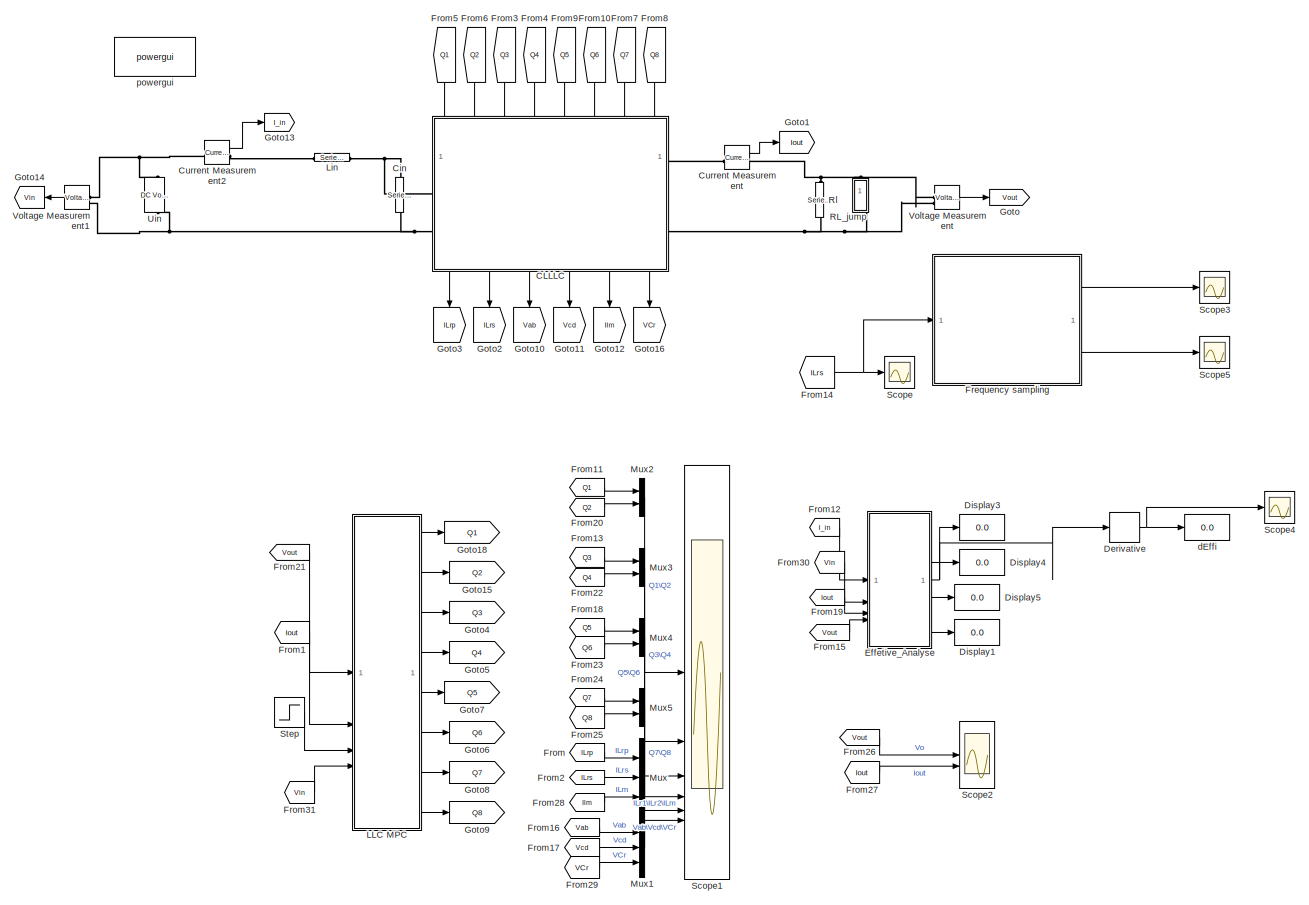
[diagram: root canvas - part 1/1, most of the canvas]
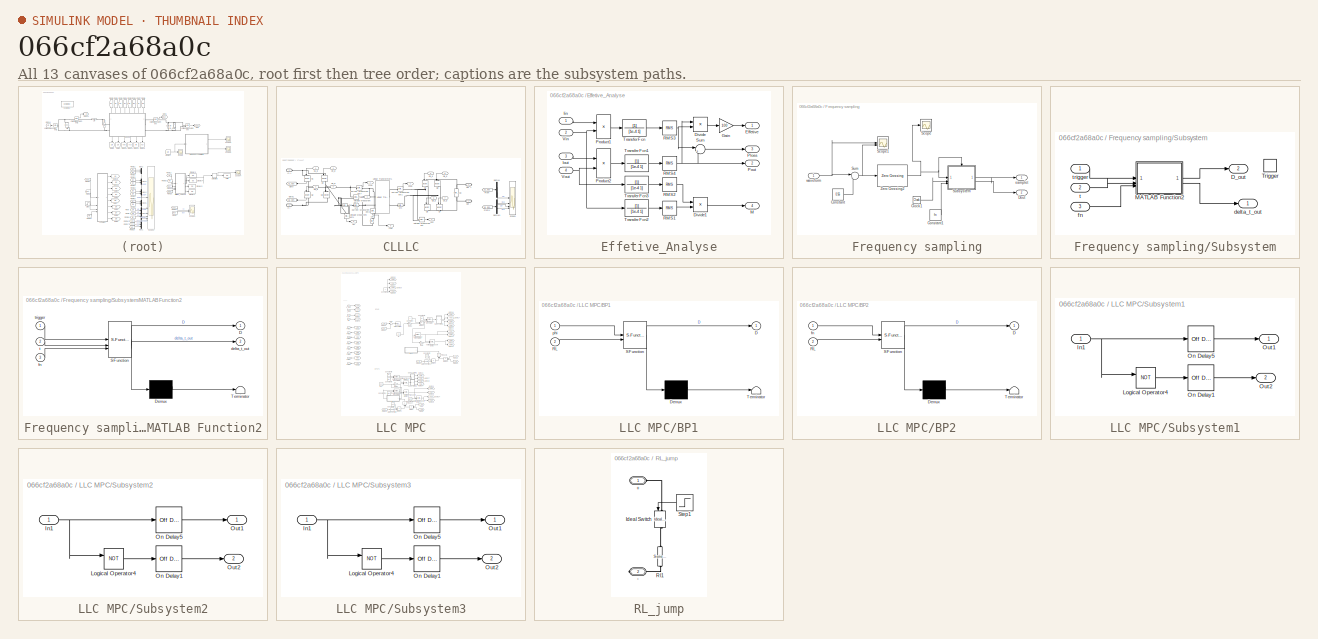
[diagram: thumbnail index - all 13 canvases of the model, root first then tree order]
MODEL slx_066cf2a68a0c
KIND model
CONFIG AbsTol = auto
CONFIG EnableMultiTasking = off
CONFIG FixedStep = 1e-8
CONFIG MaxStep = 1e-6
CONFIG MinStep = auto
CONFIG RelTol = 1e-3
CONFIG SampleTimeConstraint = Unconstrained
CONFIG SolverName = ode4
CONFIG StartTime = 0.0
CONFIG StopTime = 0.2
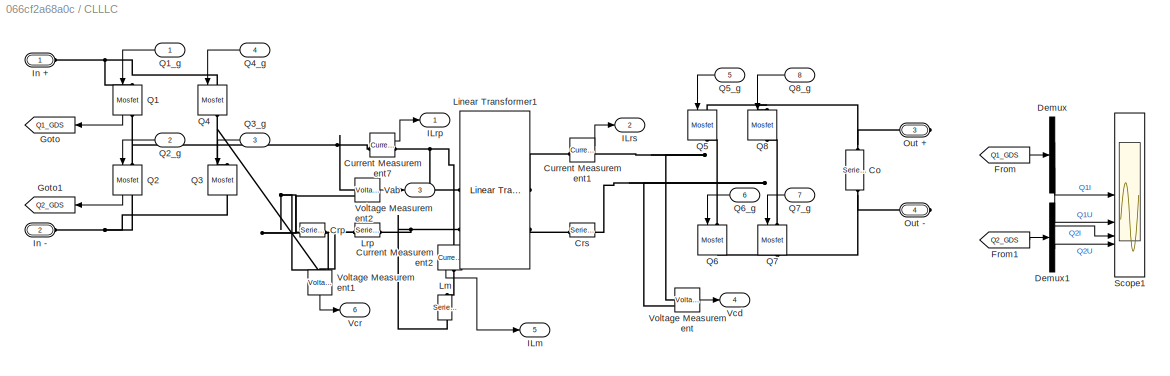
BLOCK [SubSystem] CLLLC
  PortSchema = {"entries":[{"content":{"sides":[{"content":{"connectorIds":["LConn1","LConn2"]},"type":"ConnectorPlacement.EquallySpacedRectSide","uuid":"1ddeb927-71a3-4220-b338-aababa395dac"},{"content":{"connectorIds":["RConn1","RConn2"],"side":"RIGHT"},"type":"ConnectorPlacement.EquallySpacedRectSide","uuid":"f8c4c052-3320-48db-aef8-ab942bc92f6b"},{"content":{"connectorIds":["In1","In2","In3","In4","In5","In6...<+495ch>
BLOCK [Reference] CLLLC/Co  REF=spsSeriesRLCBranchLib/Series RLC Branch
  LibrarySourceBlock = sps_lib/Passives/Series RLC Branch
  NameLocation = left
  SourceBlock = spsSeriesRLCBranchLib/Series RLC Branch
  SourceType = Series RLC Branch
BLOCK [Reference] CLLLC/Crp  REF=spsSeriesRLCBranchLib/Series RLC Branch
  LibrarySourceBlock = sps_lib/Passives/Series RLC Branch
  SourceBlock = spsSeriesRLCBranchLib/Series RLC Branch
  SourceType = Series RLC Branch
BLOCK [Reference] CLLLC/Crs  REF=spsSeriesRLCBranchLib/Series RLC Branch
  LibrarySourceBlock = sps_lib/Passives/Series RLC Branch
  SourceBlock = spsSeriesRLCBranchLib/Series RLC Branch
  SourceType = Series RLC Branch
BLOCK [Reference] CLLLC/Current Measurement1  REF=spsCurrentMeasurementLib/Current Measurement
  LibrarySourceBlock = sps_lib/Sensors and Measurements/Current Measurement
  SourceBlock = spsCurrentMeasurementLib/Current Measurement
  SourceType = Current Measurement
  UserDataPersistent = on
BLOCK [Reference] CLLLC/Current Measurement2  REF=spsCurrentMeasurementLib/Current Measurement
  LibrarySourceBlock = sps_lib/Sensors and Measurements/Current Measurement
  NameLocation = left
  SourceBlock = spsCurrentMeasurementLib/Current Measurement
  SourceType = Current Measurement
  UserDataPersistent = on
BLOCK [Reference] CLLLC/Current Measurement7  REF=spsCurrentMeasurementLib/Current Measurement
  LibrarySourceBlock = sps_lib/Sensors and Measurements/Current Measurement
  SourceBlock = spsCurrentMeasurementLib/Current Measurement
  SourceType = Current Measurement
  UserDataPersistent = on
BLOCK [Demux] CLLLC/Demux
  Outputs = 2
BLOCK [Demux] CLLLC/Demux1
  Outputs = 2
BLOCK [From] CLLLC/From
  GotoTag = Q1_GDS
BLOCK [From] CLLLC/From1
  GotoTag = Q2_GDS
  NameLocation = top
BLOCK [Goto] CLLLC/Goto
  GotoTag = Q1_GDS
  NameLocation = top
BLOCK [Goto] CLLLC/Goto1
  GotoTag = Q2_GDS
  NameLocation = top
BLOCK [Outport] CLLLC/ILm
  Port = 5
BLOCK [Outport] CLLLC/ILrp
BLOCK [Outport] CLLLC/ILrs
  Port = 2
BLOCK [PMIOPort] CLLLC/In +
  Side = Left
BLOCK [PMIOPort] CLLLC/In -
  Port = 2
  Side = Left
BLOCK [Reference] CLLLC/Linear Transformer1  REF=spsLinearTransformerLib/Linear Transformer
  LibrarySourceBlock = sps_lib/Power Grid Elements/Linear Transformer
  SourceBlock = spsLinearTransformerLib/Linear Transformer
  SourceType = Linear Transformer
BLOCK [Reference] CLLLC/Lm  REF=spsSeriesRLCBranchLib/Series RLC Branch
  LibrarySourceBlock = sps_lib/Passives/Series RLC Branch
  NameLocation = left
  SourceBlock = spsSeriesRLCBranchLib/Series RLC Branch
  SourceType = Series RLC Branch
BLOCK [Reference] CLLLC/Lrp  REF=spsSeriesRLCBranchLib/Series RLC Branch
  LibrarySourceBlock = sps_lib/Passives/Series RLC Branch
  SourceBlock = spsSeriesRLCBranchLib/Series RLC Branch
  SourceType = Series RLC Branch
BLOCK [PMIOPort] CLLLC/Out +
  NameLocation = top
  Port = 3
  Side = Right
BLOCK [PMIOPort] CLLLC/Out -
  NameLocation = top
  Port = 4
  Side = Right
BLOCK [Reference] CLLLC/Q1  REF=spsMosfetLib/Mosfet
  LibrarySourceBlock = sps_lib/Power Electronics/Mosfet
  NameLocation = left
  SourceBlock = spsMosfetLib/Mosfet
  SourceType = Mosfet
BLOCK [Inport] CLLLC/Q1_g
BLOCK [Reference] CLLLC/Q2  REF=spsMosfetLib/Mosfet
  LibrarySourceBlock = sps_lib/Power Electronics/Mosfet
  NameLocation = left
  SourceBlock = spsMosfetLib/Mosfet
  SourceType = Mosfet
BLOCK [Inport] CLLLC/Q2_g
  Port = 2
BLOCK [Reference] CLLLC/Q3  REF=spsMosfetLib/Mosfet
  LibrarySourceBlock = sps_lib/Power Electronics/Mosfet
  NameLocation = left
  SourceBlock = spsMosfetLib/Mosfet
  SourceType = Mosfet
BLOCK [Inport] CLLLC/Q3_g
  Port = 3
BLOCK [Reference] CLLLC/Q4  REF=spsMosfetLib/Mosfet
  LibrarySourceBlock = sps_lib/Power Electronics/Mosfet
  NameLocation = left
  SourceBlock = spsMosfetLib/Mosfet
  SourceType = Mosfet
BLOCK [Inport] CLLLC/Q4_g
  Port = 4
BLOCK [Reference] CLLLC/Q5  REF=spsMosfetLib/Mosfet
  LibrarySourceBlock = sps_lib/Power Electronics/Mosfet
  NameLocation = left
  SourceBlock = spsMosfetLib/Mosfet
  SourceType = Mosfet
BLOCK [Inport] CLLLC/Q5_g
  Port = 5
BLOCK [Reference] CLLLC/Q6  REF=spsMosfetLib/Mosfet
  LibrarySourceBlock = sps_lib/Power Electronics/Mosfet
  NameLocation = left
  SourceBlock = spsMosfetLib/Mosfet
  SourceType = Mosfet
BLOCK [Inport] CLLLC/Q6_g
  Port = 6
BLOCK [Reference] CLLLC/Q7  REF=spsMosfetLib/Mosfet
  LibrarySourceBlock = sps_lib/Power Electronics/Mosfet
  NameLocation = left
  SourceBlock = spsMosfetLib/Mosfet
  SourceType = Mosfet
BLOCK [Inport] CLLLC/Q7_g
  Port = 7
BLOCK [Reference] CLLLC/Q8  REF=spsMosfetLib/Mosfet
  LibrarySourceBlock = sps_lib/Power Electronics/Mosfet
  NameLocation = left
  SourceBlock = spsMosfetLib/Mosfet
  SourceType = Mosfet
BLOCK [Inport] CLLLC/Q8_g
  Port = 8
BLOCK [Scope] CLLLC/Scope1
  Floating = off
  NumInputPorts = 4
  ScopeSpecificationString = Simulink.scopes.TimeScopeBlockCfg('CurrentConfiguration', extmgr.ConfigurationSet(extmgr.Configuration('Core','General UI',true,'FigureColor',[1 1 1]),extmgr.Configuration('Core','Source UI',true),extmgr.Configuration('Sources','WiredSimulink',true,'DataLoggingVariableName','ScopeData1','DataLoggingLimitDataPoints',true,'DataLoggingMaxPoints','5e4'),extmgr.Configuration('Visuals','Time Domain',tru...<+5557ch>
BLOCK [Outport] CLLLC/Vab
  Port = 3
BLOCK [Outport] CLLLC/Vcd
  Port = 4
BLOCK [Outport] CLLLC/Vcr
  Port = 6
BLOCK [Reference] CLLLC/Voltage Measurement  REF=spsVoltageMeasurementLib/Voltage Measurement
  LibrarySourceBlock = sps_lib/Sensors and Measurements/Voltage Measurement
  SourceBlock = spsVoltageMeasurementLib/Voltage Measurement
  SourceType = Voltage Measurement
  UserDataPersistent = on
BLOCK [Reference] CLLLC/Voltage Measurement1  REF=spsVoltageMeasurementLib/Voltage Measurement
  LibrarySourceBlock = sps_lib/Sensors and Measurements/Voltage Measurement
  NameLocation = left
  SourceBlock = spsVoltageMeasurementLib/Voltage Measurement
  SourceType = Voltage Measurement
  UserDataPersistent = on
BLOCK [Reference] CLLLC/Voltage Measurement2  REF=spsVoltageMeasurementLib/Voltage Measurement
  LibrarySourceBlock = sps_lib/Sensors and Measurements/Voltage Measurement
  SourceBlock = spsVoltageMeasurementLib/Voltage Measurement
  SourceType = Voltage Measurement
  UserDataPersistent = on
BLOCK [Reference] Cin  REF=spsSeriesRLCBranchLib/Series RLC Branch
  LibrarySourceBlock = sps_lib/Passives/Series RLC Branch
  NameLocation = right
  SourceBlock = spsSeriesRLCBranchLib/Series RLC Branch
  SourceType = Series RLC Branch
BLOCK [Reference] Current Measurement  REF=spsCurrentMeasurementLib/Current Measurement
  LibrarySourceBlock = sps_lib/Sensors and Measurements/Current Measurement
  SourceBlock = spsCurrentMeasurementLib/Current Measurement
  SourceType = Current Measurement
  UserDataPersistent = on
BLOCK [Reference] Current Measurement2  REF=spsCurrentMeasurementLib/Current Measurement
  LibrarySourceBlock = sps_lib/Sensors and Measurements/Current Measurement
  SourceBlock = spsCurrentMeasurementLib/Current Measurement
  SourceType = Current Measurement
  UserDataPersistent = on
BLOCK [Derivative] Derivative
BLOCK [Display] Display1
  Decimation = 1
BLOCK [Display] Display3
  Decimation = 1
BLOCK [Display] Display4
  Decimation = 1
BLOCK [Display] Display5
  Decimation = 1
BLOCK [SubSystem] Effetive_Analyse
BLOCK [Product] Effetive_Analyse/Divide
  Inputs = */
  NameLocation = top
BLOCK [Product] Effetive_Analyse/Divide1
  Inputs = */
BLOCK [Outport] Effetive_Analyse/Effetive
BLOCK [Gain] Effetive_Analyse/Gain
  Gain = 100
BLOCK [Inport] Effetive_Analyse/Iin
BLOCK [Inport] Effetive_Analyse/Iout
  Port = 3
BLOCK [Outport] Effetive_Analyse/M
  Port = 4
BLOCK [Outport] Effetive_Analyse/Ploss
  Port = 3
BLOCK [Outport] Effetive_Analyse/Pout
  Port = 2
BLOCK [Product] Effetive_Analyse/Product1
BLOCK [Product] Effetive_Analyse/Product2
BLOCK [Reference] Effetive_Analyse/RMS1  REF=spsRMSLib/RMS
  LibrarySourceBlock = sps_lib/Sensors and Measurements/RMS
  SourceBlock = spsRMSLib/RMS
  SourceType = RMS
BLOCK [Reference] Effetive_Analyse/RMS2  REF=spsRMSLib/RMS
  LibrarySourceBlock = sps_lib/Sensors and Measurements/RMS
  SourceBlock = spsRMSLib/RMS
  SourceType = RMS
BLOCK [Reference] Effetive_Analyse/RMS3  REF=spsRMSLib/RMS
  LibrarySourceBlock = sps_lib/Sensors and Measurements/RMS
  SourceBlock = spsRMSLib/RMS
  SourceType = RMS
BLOCK [Reference] Effetive_Analyse/RMS4  REF=spsRMSLib/RMS
  LibrarySourceBlock = sps_lib/Sensors and Measurements/RMS
  SourceBlock = spsRMSLib/RMS
  SourceType = RMS
BLOCK [Sum] Effetive_Analyse/Sum
  Inputs = |+-
  NameLocation = top
BLOCK [TransferFcn] Effetive_Analyse/Transfer Fcn
  Denominator = [1e-4 1]
BLOCK [TransferFcn] Effetive_Analyse/Transfer Fcn1
  Denominator = [1e-4 1]
BLOCK [TransferFcn] Effetive_Analyse/Transfer Fcn2
  Denominator = [1e-4 1]
BLOCK [TransferFcn] Effetive_Analyse/Transfer Fcn3
  Denominator = [1e-4 1]
BLOCK [Inport] Effetive_Analyse/Vin
  Port = 2
BLOCK [Inport] Effetive_Analyse/Vout
  Port = 4
BLOCK [SubSystem] Frequency sampling
BLOCK [Clock] Frequency sampling/Clock1
BLOCK [Constant] Frequency sampling/Constant
  Value = 0.56
BLOCK [Constant] Frequency sampling/Constant1
  Value = fn
BLOCK [Outport] Frequency sampling/Dout
  Port = 2
BLOCK [Scope] Frequency sampling/Scope
  Floating = off
  NumInputPorts = 1
  ScopeSpecificationString = Simulink.scopes.TimeScopeBlockCfg('CurrentConfiguration', extmgr.ConfigurationSet(extmgr.Configuration('Core','General UI',true),extmgr.Configuration('Core','Source UI',true),extmgr.Configuration('Sources','WiredSimulink',true,'DataLoggingVariableName','ScopeData2'),extmgr.Configuration('Visuals','Time Domain',true,'SerializedDisplays',{struct('MinYLimReal','-0.07889','MaxYLimReal','1.04133','YLab...<+1417ch>
BLOCK [Scope] Frequency sampling/Scope1
  Floating = off
  NumInputPorts = 2
  ScopeSpecificationString = Simulink.scopes.TimeScopeBlockCfg('CurrentConfiguration', extmgr.ConfigurationSet(extmgr.Configuration('Core','General UI',true),extmgr.Configuration('Core','Source UI',true),extmgr.Configuration('Sources','WiredSimulink',true,'DataLoggingVariableName','ScopeData1'),extmgr.Configuration('Visuals','Time Domain',true,'SerializedDisplays',{struct('MinYLimReal','-11.11338','MaxYLimReal','11.52994','YL...<+2397ch>
BLOCK [SubSystem] Frequency sampling/Subsystem
BLOCK [Outport] Frequency sampling/Subsystem/D_out
  Port = 2
BLOCK [SubSystem] Frequency sampling/Subsystem/MATLAB Function2
  ErrorFcn = Stateflow.Translate.translate
  PermitHierarchicalResolution = ExplicitOnly
  SFBlockType = MATLAB Function
  TreatAsAtomicUnit = on
BLOCK [Demux] Frequency sampling/Subsystem/MATLAB Function2/ Demux 
  Outputs = 1
BLOCK [S-Function] Frequency sampling/Subsystem/MATLAB Function2/ SFunction 
  EnableBusSupport = on
  FunctionName = sf_sfun
  PortCounts = [3 3]
  SFcnIsStateOwnerBlock = off
  SFunctionDeploymentMode = off
  Tag = Stateflow S-Function 2
BLOCK [Terminator] Frequency sampling/Subsystem/MATLAB Function2/ Terminator 
BLOCK [Outport] Frequency sampling/Subsystem/MATLAB Function2/D
BLOCK [Outport] Frequency sampling/Subsystem/MATLAB Function2/delta_t_out
  Port = 2
BLOCK [Inport] Frequency sampling/Subsystem/MATLAB Function2/fn
  Port = 3
BLOCK [Inport] Frequency sampling/Subsystem/MATLAB Function2/t
  Port = 2
BLOCK [Inport] Frequency sampling/Subsystem/MATLAB Function2/trigger
BLOCK [TriggerPort] Frequency sampling/Subsystem/Trigger
  PortDimensions = 1
  StatesWhenEnabling = held
  VariantControl = (inherit)
BLOCK [Outport] Frequency sampling/Subsystem/delta_t_out
BLOCK [Inport] Frequency sampling/Subsystem/fn
  Port = 3
BLOCK [Inport] Frequency sampling/Subsystem/t
  Port = 2
BLOCK [Inport] Frequency sampling/Subsystem/trigger
BLOCK [Sum] Frequency sampling/Sum
  Inputs = |+-
BLOCK [Reference] Frequency sampling/Zero Crossing2  REF=dspsigops/Zero Crossing
  SourceBlock = dspsigops/Zero Crossing
  SourceType = Zero Crossing
  UserDataPersistent = on
BLOCK [Outport] Frequency sampling/samplet
BLOCK [Inport] Frequency sampling/waveform
BLOCK [From] From
  Commented = on
  GotoTag = ILrp
BLOCK [From] From1
  GotoTag = Iout
BLOCK [From] From10
  GotoTag = Q6
  NameLocation = left
BLOCK [From] From11
  Commented = on
  GotoTag = Q1
BLOCK [From] From12
  GotoTag = I_in
BLOCK [From] From13
  Commented = on
  GotoTag = Q3
BLOCK [From] From14
  GotoTag = ILrs
BLOCK [From] From15
  GotoTag = Vout
BLOCK [From] From16
  Commented = on
  GotoTag = Vab
BLOCK [From] From17
  Commented = on
  GotoTag = Vcd
BLOCK [From] From18
  Commented = on
  GotoTag = Q5
BLOCK [From] From19
  GotoTag = Iout
BLOCK [From] From2
  Commented = on
  GotoTag = ILrs
BLOCK [From] From20
  Commented = on
  GotoTag = Q2
BLOCK [From] From21
  GotoTag = Vout
BLOCK [From] From22
  Commented = on
  GotoTag = Q4
BLOCK [From] From23
  Commented = on
  GotoTag = Q6
BLOCK [From] From24
  Commented = on
  GotoTag = Q7
BLOCK [From] From25
  Commented = on
  GotoTag = Q8
BLOCK [From] From26
  GotoTag = Vout
BLOCK [From] From27
  GotoTag = Iout
BLOCK [From] From28
  Commented = on
  GotoTag = Ilm
BLOCK [From] From29
  Commented = on
  GotoTag = VCr
BLOCK [From] From3
  GotoTag = Q3
  NameLocation = left
BLOCK [From] From30
  GotoTag = Vin
  NameLocation = top
BLOCK [From] From31
  GotoTag = Vin
  NameLocation = top
BLOCK [From] From4
  GotoTag = Q4
  NameLocation = left
BLOCK [From] From5
  GotoTag = Q1
  NameLocation = left
BLOCK [From] From6
  GotoTag = Q2
  NameLocation = left
BLOCK [From] From7
  GotoTag = Q7
  NameLocation = left
BLOCK [From] From8
  GotoTag = Q8
  NameLocation = left
BLOCK [From] From9
  GotoTag = Q5
  NameLocation = left
BLOCK [Goto] Goto
  GotoTag = Vout
BLOCK [Goto] Goto1
  GotoTag = Iout
BLOCK [Goto] Goto10
  GotoTag = Vab
  NameLocation = left
BLOCK [Goto] Goto11
  GotoTag = Vcd
  NameLocation = left
BLOCK [Goto] Goto12
  GotoTag = Ilm
  NameLocation = left
BLOCK [Goto] Goto13
  GotoTag = I_in
BLOCK [Goto] Goto14
  GotoTag = Vin
  NameLocation = top
BLOCK [Goto] Goto15
  GotoTag = Q2
BLOCK [Goto] Goto16
  GotoTag = VCr
  NameLocation = left
BLOCK [Goto] Goto18
  GotoTag = Q1
BLOCK [Goto] Goto2
  GotoTag = ILrs
  NameLocation = left
BLOCK [Goto] Goto3
  GotoTag = ILrp
  NameLocation = left
BLOCK [Goto] Goto4
  GotoTag = Q3
BLOCK [Goto] Goto5
  GotoTag = Q4
BLOCK [Goto] Goto6
  GotoTag = Q6
BLOCK [Goto] Goto7
  GotoTag = Q5
BLOCK [Goto] Goto8
  GotoTag = Q7
BLOCK [Goto] Goto9
  GotoTag = Q8
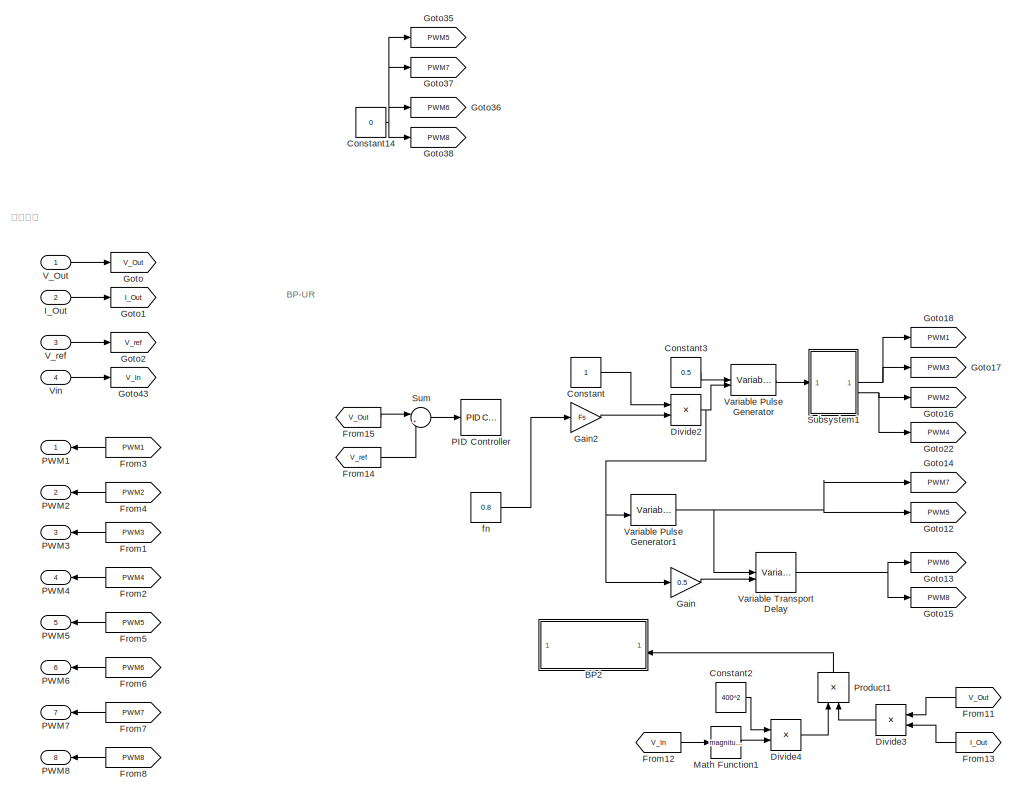
[diagram: LLC MPC - part 1/2, full width, middle band]
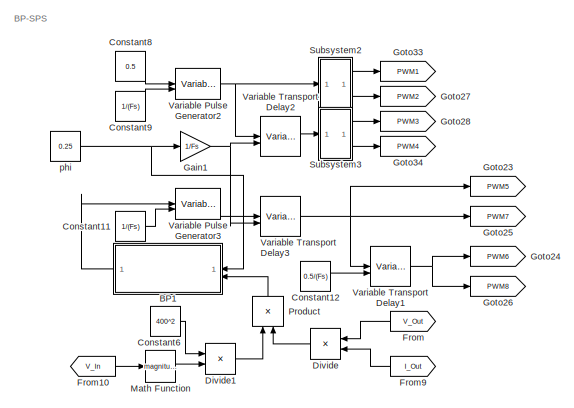
[diagram: LLC MPC - part 2/2, bottom center region]
BLOCK [SubSystem] LLC MPC
BLOCK [SubSystem] LLC MPC/BP1
  Commented = on
  ErrorFcn = Stateflow.Translate.translate
  LibrarySourceBlock = simulink/User-Defined\nFunctions/MATLAB Function
  NameLocation = top
  PermitHierarchicalResolution = ExplicitOnly
  SFBlockType = MATLAB Function
  TreatAsAtomicUnit = on
BLOCK [Demux] LLC MPC/BP1/ Demux 
  Outputs = 1
BLOCK [S-Function] LLC MPC/BP1/ SFunction 
  EnableBusSupport = off
  FunctionName = sf_sfun
  PortCounts = [2 2]
  SFcnIsStateOwnerBlock = off
  SFunctionDeploymentMode = off
  Tag = Stateflow S-Function 3
BLOCK [Terminator] LLC MPC/BP1/ Terminator 
BLOCK [Outport] LLC MPC/BP1/D
BLOCK [Inport] LLC MPC/BP1/RL
  Port = 2
BLOCK [Inport] LLC MPC/BP1/phi
BLOCK [SubSystem] LLC MPC/BP2
  Commented = on
  ErrorFcn = Stateflow.Translate.translate
  LibrarySourceBlock = simulink/User-Defined\nFunctions/MATLAB Function
  NameLocation = top
  PermitHierarchicalResolution = ExplicitOnly
  SFBlockType = MATLAB Function
  TreatAsAtomicUnit = on
BLOCK [Demux] LLC MPC/BP2/ Demux 
  Outputs = 1
BLOCK [S-Function] LLC MPC/BP2/ SFunction 
  EnableBusSupport = on
  FunctionName = sf_sfun
  PortCounts = [2 2]
  SFcnIsStateOwnerBlock = off
  SFunctionDeploymentMode = off
  Tag = Stateflow S-Function 1
BLOCK [Terminator] LLC MPC/BP2/ Terminator 
BLOCK [Outport] LLC MPC/BP2/D
BLOCK [Inport] LLC MPC/BP2/RL
  Port = 2
BLOCK [Inport] LLC MPC/BP2/fn
BLOCK [Constant] LLC MPC/Constant
BLOCK [Constant] LLC MPC/Constant11
  Commented = on
  Value = 1/(Fs)
BLOCK [Constant] LLC MPC/Constant12
  Commented = on
  Value = 0.5/(Fs)
BLOCK [Constant] LLC MPC/Constant14
  Commented = on
  Value = 0
BLOCK [Constant] LLC MPC/Constant2
  Commented = on
  Value = 400^2
BLOCK [Constant] LLC MPC/Constant3
  Value = 0.5
BLOCK [Constant] LLC MPC/Constant6
  Commented = on
  Value = 400^2
BLOCK [Constant] LLC MPC/Constant8
  Commented = on
  Value = 0.5
BLOCK [Constant] LLC MPC/Constant9
  Commented = on
  Value = 1/(Fs)
BLOCK [Product] LLC MPC/Divide
  Commented = on
  Inputs = */
  NameLocation = top
BLOCK [Product] LLC MPC/Divide1
  Commented = on
  Inputs = */
BLOCK [Product] LLC MPC/Divide2
  Inputs = */
BLOCK [Product] LLC MPC/Divide3
  Commented = on
  Inputs = */
  NameLocation = top
BLOCK [Product] LLC MPC/Divide4
  Commented = on
  Inputs = */
BLOCK [From] LLC MPC/From
  Commented = on
  GotoTag = V_Out
  NameLocation = top
BLOCK [From] LLC MPC/From1
  GotoTag = PWM3
  NameLocation = top
BLOCK [From] LLC MPC/From10
  Commented = on
  GotoTag = V_In
BLOCK [From] LLC MPC/From11
  GotoTag = V_Out
  NameLocation = top
BLOCK [From] LLC MPC/From12
  Commented = on
  GotoTag = V_In
BLOCK [From] LLC MPC/From13
  GotoTag = I_Out
  NameLocation = top
BLOCK [From] LLC MPC/From14
  GotoTag = V_ref
BLOCK [From] LLC MPC/From15
  GotoTag = V_Out
BLOCK [From] LLC MPC/From2
  GotoTag = PWM4
  NameLocation = top
BLOCK [From] LLC MPC/From3
  GotoTag = PWM1
  NameLocation = top
BLOCK [From] LLC MPC/From4
  GotoTag = PWM2
  NameLocation = top
BLOCK [From] LLC MPC/From5
  GotoTag = PWM5
  NameLocation = top
BLOCK [From] LLC MPC/From6
  GotoTag = PWM6
  NameLocation = top
BLOCK [From] LLC MPC/From7
  GotoTag = PWM7
  NameLocation = top
BLOCK [From] LLC MPC/From8
  GotoTag = PWM8
  NameLocation = top
BLOCK [From] LLC MPC/From9
  Commented = on
  GotoTag = I_Out
  NameLocation = top
BLOCK [Gain] LLC MPC/Gain
  Commented = on
  Gain = 0.5
BLOCK [Gain] LLC MPC/Gain1
  Commented = on
  Gain = 1/Fs
BLOCK [Gain] LLC MPC/Gain2
  Gain = Fs
BLOCK [Goto] LLC MPC/Goto
  GotoTag = V_Out
BLOCK [Goto] LLC MPC/Goto1
  GotoTag = I_Out
BLOCK [Goto] LLC MPC/Goto12
  GotoTag = PWM5
  NameLocation = top
BLOCK [Goto] LLC MPC/Goto13
  GotoTag = PWM6
  NameLocation = top
BLOCK [Goto] LLC MPC/Goto14
  GotoTag = PWM7
  NameLocation = top
BLOCK [Goto] LLC MPC/Goto15
  GotoTag = PWM8
  NameLocation = top
BLOCK [Goto] LLC MPC/Goto16
  GotoTag = PWM2
  NameLocation = top
BLOCK [Goto] LLC MPC/Goto17
  GotoTag = PWM3
  NameLocation = top
BLOCK [Goto] LLC MPC/Goto18
  GotoTag = PWM1
  NameLocation = top
BLOCK [Goto] LLC MPC/Goto2
  GotoTag = V_ref
BLOCK [Goto] LLC MPC/Goto22
  GotoTag = PWM4
  NameLocation = top
BLOCK [Goto] LLC MPC/Goto23
  Commented = on
  GotoTag = PWM5
  NameLocation = top
BLOCK [Goto] LLC MPC/Goto24
  Commented = on
  GotoTag = PWM6
  NameLocation = top
BLOCK [Goto] LLC MPC/Goto25
  Commented = on
  GotoTag = PWM7
  NameLocation = top
BLOCK [Goto] LLC MPC/Goto26
  Commented = on
  GotoTag = PWM8
  NameLocation = top
BLOCK [Goto] LLC MPC/Goto27
  Commented = on
  GotoTag = PWM2
  NameLocation = top
BLOCK [Goto] LLC MPC/Goto28
  Commented = on
  GotoTag = PWM3
  NameLocation = top
BLOCK [Goto] LLC MPC/Goto33
  Commented = on
  GotoTag = PWM1
  NameLocation = top
BLOCK [Goto] LLC MPC/Goto34
  Commented = on
  GotoTag = PWM4
  NameLocation = top
BLOCK [Goto] LLC MPC/Goto35
  Commented = on
  GotoTag = PWM5
  NameLocation = top
BLOCK [Goto] LLC MPC/Goto36
  Commented = on
  GotoTag = PWM6
  NameLocation = top
BLOCK [Goto] LLC MPC/Goto37
  Commented = on
  GotoTag = PWM7
  NameLocation = top
BLOCK [Goto] LLC MPC/Goto38
  Commented = on
  GotoTag = PWM8
  NameLocation = top
BLOCK [Goto] LLC MPC/Goto43
  GotoTag = V_In
BLOCK [Inport] LLC MPC/I_Out
  Port = 2
  SampleTime = 1e-4
BLOCK [Math] LLC MPC/Math Function
  Commented = on
  Operator = magnitude^2
BLOCK [Math] LLC MPC/Math Function1
  Commented = on
  Operator = magnitude^2
BLOCK [Reference] LLC MPC/PID Controller  REF=slpidlib/PID Controller
  Commented = on
  LibrarySourceBlock = simulink/Continuous/PID Controller
  SourceBlock = slpidlib/PID Controller
  SourceType = PID 1dof
BLOCK [Outport] LLC MPC/PWM1
  NameLocation = top
BLOCK [Outport] LLC MPC/PWM2
  NameLocation = top
  Port = 2
BLOCK [Outport] LLC MPC/PWM3
  NameLocation = top
  Port = 3
BLOCK [Outport] LLC MPC/PWM4
  NameLocation = top
  Port = 4
BLOCK [Outport] LLC MPC/PWM5
  NameLocation = top
  Port = 5
BLOCK [Outport] LLC MPC/PWM6
  NameLocation = top
  Port = 6
BLOCK [Outport] LLC MPC/PWM7
  NameLocation = top
  Port = 7
BLOCK [Outport] LLC MPC/PWM8
  NameLocation = top
  Port = 8
BLOCK [Product] LLC MPC/Product
  Commented = on
  NameLocation = right
BLOCK [Product] LLC MPC/Product1
  Commented = on
  NameLocation = right
BLOCK [SubSystem] LLC MPC/Subsystem1
BLOCK [Inport] LLC MPC/Subsystem1/In1
BLOCK [Logic] LLC MPC/Subsystem1/Logical Operator4
  AllPortsSameDT = off
  Operator = NOT
  OutDataTypeStr = boolean
BLOCK [Reference] LLC MPC/Subsystem1/On Delay1  REF=powerlib_extras/Control 
Blocks/On//Off Delay
  SourceBlock = powerlib_extras/Control \nBlocks/On//Off Delay
  SourceType = On/Off Delay
BLOCK [Reference] LLC MPC/Subsystem1/On Delay5  REF=powerlib_extras/Control 
Blocks/On//Off Delay
  SourceBlock = powerlib_extras/Control \nBlocks/On//Off Delay
  SourceType = On/Off Delay
BLOCK [Outport] LLC MPC/Subsystem1/Out1
BLOCK [Outport] LLC MPC/Subsystem1/Out2
  Port = 2
BLOCK [SubSystem] LLC MPC/Subsystem2
  Commented = on
BLOCK [Inport] LLC MPC/Subsystem2/In1
BLOCK [Logic] LLC MPC/Subsystem2/Logical Operator4
  AllPortsSameDT = off
  Operator = NOT
  OutDataTypeStr = boolean
BLOCK [Reference] LLC MPC/Subsystem2/On Delay1  REF=powerlib_extras/Control 
Blocks/On//Off Delay
  SourceBlock = powerlib_extras/Control \nBlocks/On//Off Delay
  SourceType = On/Off Delay
BLOCK [Reference] LLC MPC/Subsystem2/On Delay5  REF=powerlib_extras/Control 
Blocks/On//Off Delay
  SourceBlock = powerlib_extras/Control \nBlocks/On//Off Delay
  SourceType = On/Off Delay
BLOCK [Outport] LLC MPC/Subsystem2/Out1
BLOCK [Outport] LLC MPC/Subsystem2/Out2
  Port = 2
BLOCK [SubSystem] LLC MPC/Subsystem3
  Commented = on
BLOCK [Inport] LLC MPC/Subsystem3/In1
BLOCK [Logic] LLC MPC/Subsystem3/Logical Operator4
  AllPortsSameDT = off
  Operator = NOT
  OutDataTypeStr = boolean
BLOCK [Reference] LLC MPC/Subsystem3/On Delay1  REF=powerlib_extras/Control 
Blocks/On//Off Delay
  SourceBlock = powerlib_extras/Control \nBlocks/On//Off Delay
  SourceType = On/Off Delay
BLOCK [Reference] LLC MPC/Subsystem3/On Delay5  REF=powerlib_extras/Control 
Blocks/On//Off Delay
  SourceBlock = powerlib_extras/Control \nBlocks/On//Off Delay
  SourceType = On/Off Delay
BLOCK [Outport] LLC MPC/Subsystem3/Out1
BLOCK [Outport] LLC MPC/Subsystem3/Out2
  Port = 2
BLOCK [Sum] LLC MPC/Sum
  Inputs = |+-
BLOCK [Inport] LLC MPC/V_Out
  SampleTime = 1e-4
BLOCK [Inport] LLC MPC/V_ref
  Port = 3
  SampleTime = 1e-4
BLOCK [VariablePulseGenerator] LLC MPC/Variable Pulse Generator
  RunAtFixedTimeIntervals = on
  SampleTime = 1e-7
BLOCK [VariablePulseGenerator] LLC MPC/Variable Pulse Generator1
  Commented = on
  SampleTime = 0.1
BLOCK [VariablePulseGenerator] LLC MPC/Variable Pulse Generator2
  Commented = on
  SampleTime = 0.1
BLOCK [VariablePulseGenerator] LLC MPC/Variable Pulse Generator3
  Commented = on
  SampleTime = 0.1
BLOCK [VariableTransportDelay] LLC MPC/Variable Transport Delay
  Commented = on
  MaximumDelay = 1000
  VariableDelayType = Variable transport delay
BLOCK [VariableTransportDelay] LLC MPC/Variable Transport Delay1
  Commented = on
  MaximumDelay = 1000
  VariableDelayType = Variable transport delay
BLOCK [VariableTransportDelay] LLC MPC/Variable Transport Delay2
  Commented = on
  MaximumDelay = 1000
  VariableDelayType = Variable transport delay
BLOCK [VariableTransportDelay] LLC MPC/Variable Transport Delay3
  Commented = on
  MaximumDelay = 1000
  VariableDelayType = Variable transport delay
BLOCK [Inport] LLC MPC/Vin
  Port = 4
  SampleTime = 1e-4
BLOCK [Constant] LLC MPC/fn
  Value = 0.8
BLOCK [Constant] LLC MPC/phi
  Commented = on
  Value = 0.25
BLOCK [Reference] Lin  REF=spsSeriesRLCBranchLib/Series RLC Branch
  LibrarySourceBlock = sps_lib/Passives/Series RLC Branch
  SourceBlock = spsSeriesRLCBranchLib/Series RLC Branch
  SourceType = Series RLC Branch
BLOCK [Mux] Mux
  Commented = on
  DisplayOption = bar
  Inputs = 3
BLOCK [Mux] Mux1
  Commented = on
  DisplayOption = bar
  Inputs = 3
BLOCK [Mux] Mux2
  Commented = on
  DisplayOption = bar
  Inputs = 2
BLOCK [Mux] Mux3
  Commented = on
  DisplayOption = bar
  Inputs = 2
BLOCK [Mux] Mux4
  Commented = on
  DisplayOption = bar
  Inputs = 2
BLOCK [Mux] Mux5
  Commented = on
  DisplayOption = bar
  Inputs = 2
BLOCK [SubSystem] RL_jump
  PortSchema = {"entries":[{"content":{"sides":[{"content":{"connectorIds":[]},"type":"ConnectorPlacement.EquallySpacedRectSide","uuid":"4c795bd4-1bab-4c55-833f-6eced2a87930"},{"content":{"connectorIds":[],"side":"RIGHT"},"type":"ConnectorPlacement.EquallySpacedRectSide","uuid":"14618bb5-b612-4b35-9ba9-216447f96e21"},{"content":{"connectorIds":["LConn1"],"side":"TOP"},"type":"ConnectorPlacement.EquallySpacedRect...<+389ch>
BLOCK [PMIOPort] RL_jump/+
  Side = Left
BLOCK [PMIOPort] RL_jump/-
  NameLocation = top
  Port = 2
  Side = Right
BLOCK [Reference] RL_jump/Ideal Switch  REF=spsIdealSwitchLib/Ideal Switch
  LibrarySourceBlock = sps_lib/Power Electronics/Ideal Switch
  NameLocation = left
  SourceBlock = spsIdealSwitchLib/Ideal Switch
  SourceType = Ideal Switch
BLOCK [Reference] RL_jump/Rl1  REF=spsSeriesRLCBranchLib/Series RLC Branch
  LibrarySourceBlock = sps_lib/Passives/Series RLC Branch
  NameLocation = right
  SourceBlock = spsSeriesRLCBranchLib/Series RLC Branch
  SourceType = Series RLC Branch
BLOCK [Step] RL_jump/Step1
  NameLocation = top
  SampleTime = 0
  Time = Tj
BLOCK [Reference] Rl  REF=spsSeriesRLCBranchLib/Series RLC Branch
  LibrarySourceBlock = sps_lib/Passives/Series RLC Branch
  NameLocation = right
  SourceBlock = spsSeriesRLCBranchLib/Series RLC Branch
  SourceType = Series RLC Branch
BLOCK [Scope] Scope
  Floating = off
  NumInputPorts = 1
  ScopeSpecificationString = Simulink.scopes.TimeScopeBlockCfg('CurrentConfiguration', extmgr.ConfigurationSet(extmgr.Configuration('Core','General UI',true),extmgr.Configuration('Core','Source UI',true),extmgr.Configuration('Sources','WiredSimulink',true,'DataLoggingVariableName','ScopeData1'),extmgr.Configuration('Visuals','Time Domain',true,'SerializedDisplays',{struct('MinYLimReal','-13.84134','MaxYLimReal','12.97863','YL...<+1750ch>
BLOCK [Scope] Scope1
  Commented = on
  Floating = off
  NumInputPorts = 6
  ScopeSpecificationString = Simulink.scopes.TimeScopeBlockCfg('CurrentConfiguration', extmgr.ConfigurationSet(extmgr.Configuration('Core','General UI',true,'FigureColor',[1 1 1]),extmgr.Configuration('Core','Source UI',true),extmgr.Configuration('Sources','WiredSimulink',true,'DataLoggingVariableName','ScopeData1','DataLoggingLimitDataPoints',true,'DataLoggingMaxPoints','1e6'),extmgr.Configuration('Visuals','Time Domain',tru...<+7295ch>
BLOCK [Scope] Scope2
  Floating = off
  NumInputPorts = 2
  ScopeSpecificationString = Simulink.scopes.TimeScopeBlockCfg('CurrentConfiguration', extmgr.ConfigurationSet(extmgr.Configuration('Core','General UI',true,'FigureColor',[1 1 1]),extmgr.Configuration('Core','Source UI',true),extmgr.Configuration('Sources','WiredSimulink',true,'DataLoggingVariableName','ScopeData1','DataLoggingLimitDataPoints',true,'DataLoggingMaxPoints','5000*6'),extmgr.Configuration('Visuals','Time Domain',...<+3232ch>
BLOCK [Scope] Scope3
  Floating = off
  NumInputPorts = 1
  ScopeSpecificationString = Simulink.scopes.TimeScopeBlockCfg('CurrentConfiguration', extmgr.ConfigurationSet(extmgr.Configuration('Core','General UI',true),extmgr.Configuration('Core','Source UI',true),extmgr.Configuration('Sources','WiredSimulink',true,'DataLoggingVariableName','ScopeData3'),extmgr.Configuration('Visuals','Time Domain',true,'SerializedDisplays',{struct('MinYLimReal','-0.0000006','MaxYLimReal','0.000005','Y...<+1475ch>
BLOCK [Scope] Scope4
  Floating = off
  NumInputPorts = 1
  ScopeSpecificationString = Simulink.scopes.TimeScopeBlockCfg('CurrentConfiguration', extmgr.ConfigurationSet(extmgr.Configuration('Core','General UI',true),extmgr.Configuration('Core','Source UI',true),extmgr.Configuration('Sources','WiredSimulink',true,'DataLoggingVariableName','ScopeData4'),extmgr.Configuration('Visuals','Time Domain',true,'SerializedDisplays',{struct('MinYLimReal','-1823.08328','MaxYLimReal','10549.81052...<+1468ch>
BLOCK [Scope] Scope5
  Floating = off
  NumInputPorts = 1
  ScopeSpecificationString = Simulink.scopes.TimeScopeBlockCfg('CurrentConfiguration', extmgr.ConfigurationSet(extmgr.Configuration('Core','General UI',true),extmgr.Configuration('Core','Source UI',true),extmgr.Configuration('Sources','WiredSimulink',true,'DataLoggingVariableName','ScopeData1'),extmgr.Configuration('Visuals','Time Domain',true,'SerializedDisplays',{struct('MinYLimReal','109798.40588','MaxYLimReal','114476.555...<+1491ch>
BLOCK [Step] Step
  After = 400
  Before = 460
  SampleTime = 0
BLOCK [Reference] Uin  REF=spsDCVoltageSourceLib/DC Voltage Source
  LibrarySourceBlock = sps_lib/Sources/DC Voltage Source
  NameLocation = left
  SourceBlock = spsDCVoltageSourceLib/DC Voltage Source
  SourceType = DC Voltage Source
BLOCK [Reference] Voltage Measurement  REF=spsVoltageMeasurementLib/Voltage Measurement
  LibrarySourceBlock = sps_lib/Sensors and Measurements/Voltage Measurement
  SourceBlock = spsVoltageMeasurementLib/Voltage Measurement
  SourceType = Voltage Measurement
  UserDataPersistent = on
BLOCK [Reference] Voltage Measurement1  REF=spsVoltageMeasurementLib/Voltage Measurement
  LibrarySourceBlock = sps_lib/Sensors and Measurements/Voltage Measurement
  NameLocation = top
  SourceBlock = spsVoltageMeasurementLib/Voltage Measurement
  SourceType = Voltage Measurement
  UserDataPersistent = on
BLOCK [Display] dEffi
  Decimation = 1
BLOCK [Reference] powergui  REF=spspowerguiLib/powergui
  LibrarySourceBlock = sps_lib/powergui
  Priority = 1
  SourceBlock = spspowerguiLib/powergui
  SourceType = PSB option menu block
ANNOTATION LLC MPC: BP-SPS
ANNOTATION LLC MPC: BP-UR
ANNOTATION LLC MPC: 端口定义
LINE CLLLC/Current Measurement1:1 -> CLLLC/ILrs:1
LINE CLLLC/Current Measurement2:1 -> CLLLC/ILm:1
LINE CLLLC/Current Measurement7:1 -> CLLLC/ILrp:1
LINE CLLLC/Demux1:1 -> CLLLC/Scope1:3
LINE CLLLC/Demux1:2 -> CLLLC/Scope1:4
LINE CLLLC/Demux:1 -> CLLLC/Scope1:1
LINE CLLLC/Demux:2 -> CLLLC/Scope1:2
LINE CLLLC/From1:1 -> CLLLC/Demux1:1
LINE CLLLC/From:1 -> CLLLC/Demux:1
LINE CLLLC/Q1:1 -> CLLLC/Goto:1
LINE CLLLC/Q1_g:1 -> CLLLC/Q1:1
LINE CLLLC/Q2:1 -> CLLLC/Goto1:1
LINE CLLLC/Q2_g:1 -> CLLLC/Q2:1
LINE CLLLC/Q3_g:1 -> CLLLC/Q3:1
LINE CLLLC/Q4_g:1 -> CLLLC/Q4:1
LINE CLLLC/Q5_g:1 -> CLLLC/Q5:1
LINE CLLLC/Q6_g:1 -> CLLLC/Q6:1
LINE CLLLC/Q7_g:1 -> CLLLC/Q7:1
LINE CLLLC/Q8_g:1 -> CLLLC/Q8:1
LINE CLLLC/Voltage Measurement1:1 -> CLLLC/Vcr:1
LINE CLLLC/Voltage Measurement2:1 -> CLLLC/Vab:1
LINE CLLLC/Voltage Measurement:1 -> CLLLC/Vcd:1
LINE CLLLC:1 -> Goto3:1
LINE CLLLC:2 -> Goto2:1
LINE CLLLC:3 -> Goto10:1
LINE CLLLC:4 -> Goto11:1
LINE CLLLC:5 -> Goto12:1
LINE CLLLC:6 -> Goto16:1
LINE Current Measurement2:1 -> Goto13:1
LINE Current Measurement:1 -> Goto1:1
NET Derivative:1 -> Scope4:1, dEffi:1
LINE Effetive_Analyse/Divide1:1 -> Effetive_Analyse/M:1
LINE Effetive_Analyse/Divide:1 -> Effetive_Analyse/Gain:1
LINE Effetive_Analyse/Gain:1 -> Effetive_Analyse/Effetive:1
LINE Effetive_Analyse/Iin:1 -> Effetive_Analyse/Product1:1
LINE Effetive_Analyse/Iout:1 -> Effetive_Analyse/Product2:1
LINE Effetive_Analyse/Product1:1 -> Effetive_Analyse/Transfer Fcn:1
LINE Effetive_Analyse/Product2:1 -> Effetive_Analyse/Transfer Fcn1:1
LINE Effetive_Analyse/RMS1:1 -> Effetive_Analyse/Divide1:2
LINE Effetive_Analyse/RMS2:1 -> Effetive_Analyse/Divide1:1
NET Effetive_Analyse/RMS3:1 -> Effetive_Analyse/Divide:2, Effetive_Analyse/Sum:1
NET Effetive_Analyse/RMS4:1 -> Effetive_Analyse/Divide:1, Effetive_Analyse/Pout:1, Effetive_Analyse/Sum:2
LINE Effetive_Analyse/Sum:1 -> Effetive_Analyse/Ploss:1
LINE Effetive_Analyse/Transfer Fcn1:1 -> Effetive_Analyse/RMS4:1
LINE Effetive_Analyse/Transfer Fcn2:1 -> Effetive_Analyse/RMS1:1
LINE Effetive_Analyse/Transfer Fcn3:1 -> Effetive_Analyse/RMS2:1
LINE Effetive_Analyse/Transfer Fcn:1 -> Effetive_Analyse/RMS3:1
NET Effetive_Analyse/Vin:1 -> Effetive_Analyse/Product1:2, Effetive_Analyse/Transfer Fcn2:1
NET Effetive_Analyse/Vout:1 -> Effetive_Analyse/Product2:2, Effetive_Analyse/Transfer Fcn3:1
NET Effetive_Analyse:1 -> Derivative:1, Display3:1
LINE Effetive_Analyse:2 -> Display4:1
LINE Effetive_Analyse:3 -> Display5:1
LINE Effetive_Analyse:4 -> Display1:1
LINE Frequency sampling/Clock1:1 -> Frequency sampling/Subsystem:2
LINE Frequency sampling/Constant1:1 -> Frequency sampling/Subsystem:3
LINE Frequency sampling/Constant:1 -> Frequency sampling/Sum:2
LINE Frequency sampling/Subsystem/MATLAB Function2:1 -> Frequency sampling/Subsystem/D_out:1
LINE Frequency sampling/Subsystem/MATLAB Function2:2 -> Frequency sampling/Subsystem/delta_t_out:1
LINE Frequency sampling/Subsystem/fn:1 -> Frequency sampling/Subsystem/MATLAB Function2:3
LINE Frequency sampling/Subsystem/t:1 -> Frequency sampling/Subsystem/MATLAB Function2:2
LINE Frequency sampling/Subsystem/trigger:1 -> Frequency sampling/Subsystem/MATLAB Function2:1
LINE Frequency sampling/Subsystem:1 -> Frequency sampling/samplet:1
LINE Frequency sampling/Subsystem:2 -> Frequency sampling/Dout:1
NET Frequency sampling/Sum:1 -> Frequency sampling/Scope1:2, Frequency sampling/Zero Crossing2:1
NET Frequency sampling/Zero Crossing2:1 -> Frequency sampling/Scope:1, Frequency sampling/Subsystem:1, Frequency sampling/Subsystem:trigger
NET Frequency sampling/waveform:1 -> Frequency sampling/Scope1:1, Frequency sampling/Sum:1
LINE Frequency sampling:1 -> Scope3:1
LINE Frequency sampling:2 -> Scope5:1
LINE From10:1 -> CLLLC:6
LINE From11:1 -> Mux2:1
LINE From12:1 -> Effetive_Analyse:1
LINE From13:1 -> Mux3:1
NET From14:1 -> Frequency sampling:1, Scope:1
LINE From15:1 -> Effetive_Analyse:4
LINE From16:1 -> Mux1:1
LINE From17:1 -> Mux1:2
LINE From18:1 -> Mux4:1
LINE From19:1 -> Effetive_Analyse:3
LINE From1:1 -> LLC MPC:2
LINE From20:1 -> Mux2:2
LINE From21:1 -> LLC MPC:1
LINE From22:1 -> Mux3:2
LINE From23:1 -> Mux4:2
LINE From24:1 -> Mux5:1
LINE From25:1 -> Mux5:2
LINE From26:1 -> Scope2:1
LINE From27:1 -> Scope2:2
LINE From28:1 -> Mux:3
LINE From29:1 -> Mux1:3
LINE From2:1 -> Mux:2
LINE From30:1 -> Effetive_Analyse:2
LINE From31:1 -> LLC MPC:4
LINE From3:1 -> CLLLC:3
LINE From4:1 -> CLLLC:4
LINE From5:1 -> CLLLC:1
LINE From6:1 -> CLLLC:2
LINE From7:1 -> CLLLC:7
LINE From8:1 -> CLLLC:8
LINE From9:1 -> CLLLC:5
LINE From:1 -> Mux:1
LINE LLC MPC/BP1:1 -> LLC MPC/Variable Pulse Generator3:1
LINE LLC MPC/Constant11:1 -> LLC MPC/Variable Pulse Generator3:2
LINE LLC MPC/Constant12:1 -> LLC MPC/Variable Transport Delay1:2
NET LLC MPC/Constant14:1 -> LLC MPC/Goto35:1, LLC MPC/Goto36:1, LLC MPC/Goto37:1, LLC MPC/Goto38:1
LINE LLC MPC/Constant2:1 -> LLC MPC/Divide4:1
LINE LLC MPC/Constant3:1 -> LLC MPC/Variable Pulse Generator:1
LINE LLC MPC/Constant6:1 -> LLC MPC/Divide1:1
LINE LLC MPC/Constant8:1 -> LLC MPC/Variable Pulse Generator2:1
LINE LLC MPC/Constant9:1 -> LLC MPC/Variable Pulse Generator2:2
LINE LLC MPC/Constant:1 -> LLC MPC/Divide2:1
LINE LLC MPC/Divide1:1 -> LLC MPC/Product:1
NET LLC MPC/Divide2:1 -> LLC MPC/Gain:1, LLC MPC/Variable Pulse Generator1:2, LLC MPC/Variable Pulse Generator:2
LINE LLC MPC/Divide3:1 -> LLC MPC/Product1:2
LINE LLC MPC/Divide4:1 -> LLC MPC/Product1:1
LINE LLC MPC/Divide:1 -> LLC MPC/Product:2
LINE LLC MPC/From10:1 -> LLC MPC/Math Function:1
LINE LLC MPC/From11:1 -> LLC MPC/Divide3:1
LINE LLC MPC/From12:1 -> LLC MPC/Math Function1:1
LINE LLC MPC/From13:1 -> LLC MPC/Divide3:2
LINE LLC MPC/From14:1 -> LLC MPC/Sum:2
LINE LLC MPC/From15:1 -> LLC MPC/Sum:1
LINE LLC MPC/From1:1 -> LLC MPC/PWM3:1
LINE LLC MPC/From2:1 -> LLC MPC/PWM4:1
LINE LLC MPC/From3:1 -> LLC MPC/PWM1:1
LINE LLC MPC/From4:1 -> LLC MPC/PWM2:1
LINE LLC MPC/From5:1 -> LLC MPC/PWM5:1
LINE LLC MPC/From6:1 -> LLC MPC/PWM6:1
LINE LLC MPC/From7:1 -> LLC MPC/PWM7:1
LINE LLC MPC/From8:1 -> LLC MPC/PWM8:1
LINE LLC MPC/From9:1 -> LLC MPC/Divide:2
LINE LLC MPC/From:1 -> LLC MPC/Divide:1
NET LLC MPC/Gain1:1 -> LLC MPC/Variable Transport Delay2:2, LLC MPC/Variable Transport Delay3:2
LINE LLC MPC/Gain2:1 -> LLC MPC/Divide2:2
LINE LLC MPC/Gain:1 -> LLC MPC/Variable Transport Delay:2
LINE LLC MPC/I_Out:1 -> LLC MPC/Goto1:1
LINE LLC MPC/Math Function1:1 -> LLC MPC/Divide4:2
LINE LLC MPC/Math Function:1 -> LLC MPC/Divide1:2
LINE LLC MPC/Product1:1 -> LLC MPC/BP2:2
LINE LLC MPC/Product:1 -> LLC MPC/BP1:2
NET LLC MPC/Subsystem1/In1:1 -> LLC MPC/Subsystem1/Logical Operator4:1, LLC MPC/Subsystem1/On Delay5:1
LINE LLC MPC/Subsystem1/Logical Operator4:1 -> LLC MPC/Subsystem1/On Delay1:1
LINE LLC MPC/Subsystem1/On Delay1:1 -> LLC MPC/Subsystem1/Out2:1
LINE LLC MPC/Subsystem1/On Delay5:1 -> LLC MPC/Subsystem1/Out1:1
NET LLC MPC/Subsystem1:1 -> LLC MPC/Goto17:1, LLC MPC/Goto18:1
NET LLC MPC/Subsystem1:2 -> LLC MPC/Goto16:1, LLC MPC/Goto22:1
NET LLC MPC/Subsystem2/In1:1 -> LLC MPC/Subsystem2/Logical Operator4:1, LLC MPC/Subsystem2/On Delay5:1
LINE LLC MPC/Subsystem2/Logical Operator4:1 -> LLC MPC/Subsystem2/On Delay1:1
LINE LLC MPC/Subsystem2/On Delay1:1 -> LLC MPC/Subsystem2/Out2:1
LINE LLC MPC/Subsystem2/On Delay5:1 -> LLC MPC/Subsystem2/Out1:1
LINE LLC MPC/Subsystem2:1 -> LLC MPC/Goto33:1
LINE LLC MPC/Subsystem2:2 -> LLC MPC/Goto27:1
NET LLC MPC/Subsystem3/In1:1 -> LLC MPC/Subsystem3/Logical Operator4:1, LLC MPC/Subsystem3/On Delay5:1
LINE LLC MPC/Subsystem3/Logical Operator4:1 -> LLC MPC/Subsystem3/On Delay1:1
LINE LLC MPC/Subsystem3/On Delay1:1 -> LLC MPC/Subsystem3/Out2:1
LINE LLC MPC/Subsystem3/On Delay5:1 -> LLC MPC/Subsystem3/Out1:1
LINE LLC MPC/Subsystem3:1 -> LLC MPC/Goto28:1
LINE LLC MPC/Subsystem3:2 -> LLC MPC/Goto34:1
LINE LLC MPC/Sum:1 -> LLC MPC/PID Controller:1
LINE LLC MPC/V_Out:1 -> LLC MPC/Goto:1
LINE LLC MPC/V_ref:1 -> LLC MPC/Goto2:1
NET LLC MPC/Variable Pulse Generator1:1 -> LLC MPC/Goto12:1, LLC MPC/Goto14:1, LLC MPC/Variable Transport Delay:1
NET LLC MPC/Variable Pulse Generator2:1 -> LLC MPC/Subsystem2:1, LLC MPC/Variable Transport Delay2:1
LINE LLC MPC/Variable Pulse Generator3:1 -> LLC MPC/Variable Transport Delay3:1
LINE LLC MPC/Variable Pulse Generator:1 -> LLC MPC/Subsystem1:1
NET LLC MPC/Variable Transport Delay1:1 -> LLC MPC/Goto24:1, LLC MPC/Goto26:1
LINE LLC MPC/Variable Transport Delay2:1 -> LLC MPC/Subsystem3:1
NET LLC MPC/Variable Transport Delay3:1 -> LLC MPC/Goto23:1, LLC MPC/Goto25:1, LLC MPC/Variable Transport Delay1:1
NET LLC MPC/Variable Transport Delay:1 -> LLC MPC/Goto13:1, LLC MPC/Goto15:1
LINE LLC MPC/Vin:1 -> LLC MPC/Goto43:1
LINE LLC MPC/fn:1 -> LLC MPC/Gain2:1
NET LLC MPC/phi:1 -> LLC MPC/BP1:1, LLC MPC/Gain1:1
LINE LLC MPC:1 -> Goto18:1
LINE LLC MPC:2 -> Goto15:1
LINE LLC MPC:3 -> Goto4:1
LINE LLC MPC:4 -> Goto5:1
LINE LLC MPC:5 -> Goto7:1
LINE LLC MPC:6 -> Goto6:1
LINE LLC MPC:7 -> Goto8:1
LINE LLC MPC:8 -> Goto9:1
LINE Mux1:1 -> Scope1:6
LINE Mux2:1 -> Scope1:1
LINE Mux3:1 -> Scope1:2
LINE Mux4:1 -> Scope1:3
LINE Mux5:1 -> Scope1:4
LINE Mux:1 -> Scope1:5
LINE RL_jump/Step1:1 -> RL_jump/Ideal Switch:1
LINE Step:1 -> LLC MPC:3
LINE Voltage Measurement1:1 -> Goto14:1
LINE Voltage Measurement:1 -> Goto:1
PNET net1: CLLLC/Co:LConn1 -- CLLLC/Out +:RConn1 -- CLLLC/Q5:LConn1 -- CLLLC/Q8:LConn1
PNET net2: CLLLC/Co:RConn1 -- CLLLC/Out -:RConn1 -- CLLLC/Q6:RConn1 -- CLLLC/Q7:RConn1
PNET net3: CLLLC/Crp:LConn1 -- CLLLC/Q3:LConn1 -- CLLLC/Q4:RConn1 -- CLLLC/Voltage Measurement1:LConn2 -- CLLLC/Voltage Measurement2:LConn2
PNET net4: CLLLC/Crp:RConn1 -- CLLLC/Lrp:LConn1 -- CLLLC/Voltage Measurement1:LConn1
PLINE CLLLC/Crs:LConn1 -- CLLLC/Linear Transformer1:RConn2
PNET net5: CLLLC/Crs:RConn1 -- CLLLC/Q7:LConn1 -- CLLLC/Q8:RConn1 -- CLLLC/Voltage Measurement:LConn2
PLINE CLLLC/Current Measurement1:LConn1 -- CLLLC/Linear Transformer1:RConn1
PNET net6: CLLLC/Current Measurement1:RConn1 -- CLLLC/Q5:RConn1 -- CLLLC/Q6:LConn1 -- CLLLC/Voltage Measurement:LConn1
PNET net7: CLLLC/Current Measurement2:LConn1 -- CLLLC/Current Measurement7:RConn1 -- CLLLC/Linear Transformer1:LConn1
PLINE CLLLC/Current Measurement2:RConn1 -- CLLLC/Lm:LConn1
PNET net8: CLLLC/Current Measurement7:LConn1 -- CLLLC/Q1:RConn1 -- CLLLC/Q2:LConn1 -- CLLLC/Voltage Measurement2:LConn1
PNET net9: CLLLC/In +:RConn1 -- CLLLC/Q1:LConn1 -- CLLLC/Q4:LConn1
PNET net10: CLLLC/In -:RConn1 -- CLLLC/Q2:RConn1 -- CLLLC/Q3:RConn1
PNET net11: CLLLC/Linear Transformer1:LConn2 -- CLLLC/Lm:RConn1 -- CLLLC/Lrp:RConn1
PNET net12: CLLLC:LConn1 -- Cin:LConn1 -- Lin:LConn1
PNET net13: CLLLC:LConn2 -- Cin:RConn1 -- Uin:LConn1 -- Voltage Measurement1:LConn2
PLINE CLLLC:RConn1 -- Current Measurement:LConn1
PNET net14: CLLLC:RConn2 -- RL_jump:RConn1 -- Rl:RConn1 -- Voltage Measurement:LConn2
PNET net15: Current Measurement2:LConn1 -- Uin:RConn1 -- Voltage Measurement1:LConn1
PLINE Current Measurement2:RConn1 -- Lin:RConn1
PNET net16: Current Measurement:RConn1 -- RL_jump:LConn1 -- Rl:LConn1 -- Voltage Measurement:LConn1
PLINE RL_jump/+:RConn1 -- RL_jump/Ideal Switch:LConn1
PLINE RL_jump/-:RConn1 -- RL_jump/Rl1:RConn1
PLINE RL_jump/Ideal Switch:RConn1 -- RL_jump/Rl1:LConn1
note: NET lines group one-source signal fan-out (src -> all destinations, sorted); 1:1 wires keep LINE; PNET lines group multi-terminal physical nets as a canonical sorted terminal list (undirected conserving connections); 2-terminal nets keep the pairwise PLINE form
CHART LLC MPC/BP2 states=1 transitions=1
  STATE_LABEL 'eML_blk_kernel()'
  STATE_LABEL 'SCRIPT:\nfunction D = UR_Network(fn,RL)\n\nfn_n=5*fn-4;\nRL_n=0.0022*RL-1.22;\nx_in=[fn_n;RL_n];\n\nW1=[-1.8033    0.0008\n    0.9725    1.2256\n    0.9993    0.0143];\n\nW2=[0.1361    0.4091   -2.4660\n   -0.3363    0.8031    0.6697];\n\nb1=[1.0137\n    2.0847\n    1.3118];\n\nb2=[1.1304\n   -0.6780];\n\ny=2./(1+exp(-2*(W1*x_in+b1)))-1;\ny=W2*y+b2;\n\nD=y(2,1)/9.5969+0.3956-0.1;\n\nif(D>0.45) \n    D=0.45; \nelseif(D<0.05)\n...<+20ch>'
CHART Frequency sampling/Subsystem/MATLAB Function2 states=1 transitions=1
  STATE_LABEL 'eML_blk_kernel()'
  STATE_LABEL 'SCRIPT:\nfunction [D,delta_t_out] = fcn(trigger,t,fn)\nTs = 1/(160e3*fn); %% 开关周期，其中fn在外部定义\n\npersistent last_t;\npersistent delta_t;\npersistent last_delta_t;\nif(isempty(last_t)||isempty(delta_t)||isempty(last_delta_t))\n    last_t = 0;\n    delta_t = 1;\n    last_delta_t = 0;\nend\nif (trigger > 0 )\n    delta_t = t - last_t;\n    last_t = t;\n    if (delta_t < Ts/2) %% 只有半个周期内的过零点才有效\n      delta_t_out = del...<+209ch>'
CHART LLC MPC/BP1 states=1 transitions=1
  STATE_LABEL 'eML_blk_kernel()'
  STATE_LABEL 'SCRIPT:\nfunction D = SPS_Network(phi,RL)\n\nphi_n=5*phi-1;\nRL_n=0.0022*RL-1.22;\nx_in=[phi_n;RL_n];\n\nW1=[0.3539   -0.0425\n   -0.3619   -0.2712\n   -0.4244    1.2797];\n\nW2=[-36.3379   -2.1592   -0.6478\n    9.8062    3.5222    0.8689];\n\nb1=[-1.7429\n    0.1982\n   -0.3012];\n\nb2=[-33.1925\n    8.7709];\n\ny=2./(1+exp(-2*(W1*x_in+b1)))-1;\ny=W2*y+b2;\n\nD=y(2,1)/6.2775+0.3394-0.1;\n\n\nif(D>0.45) \n    D=0.45; \nelsei...<+28ch>'
CHART  states=0 transitions=0
CHART  states=0 transitions=0
CHART  states=0 transitions=0
